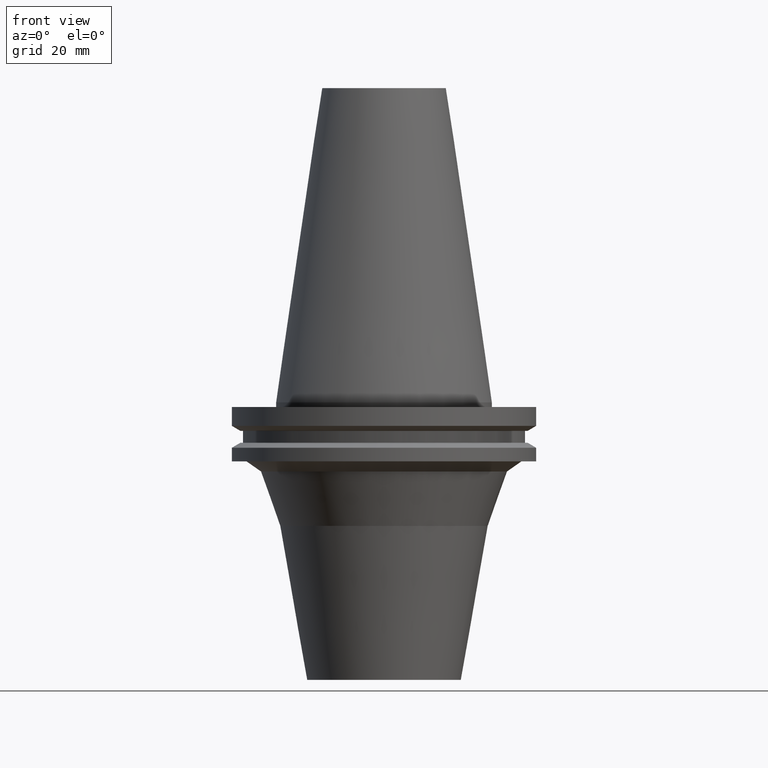
[diagram: clean part render]
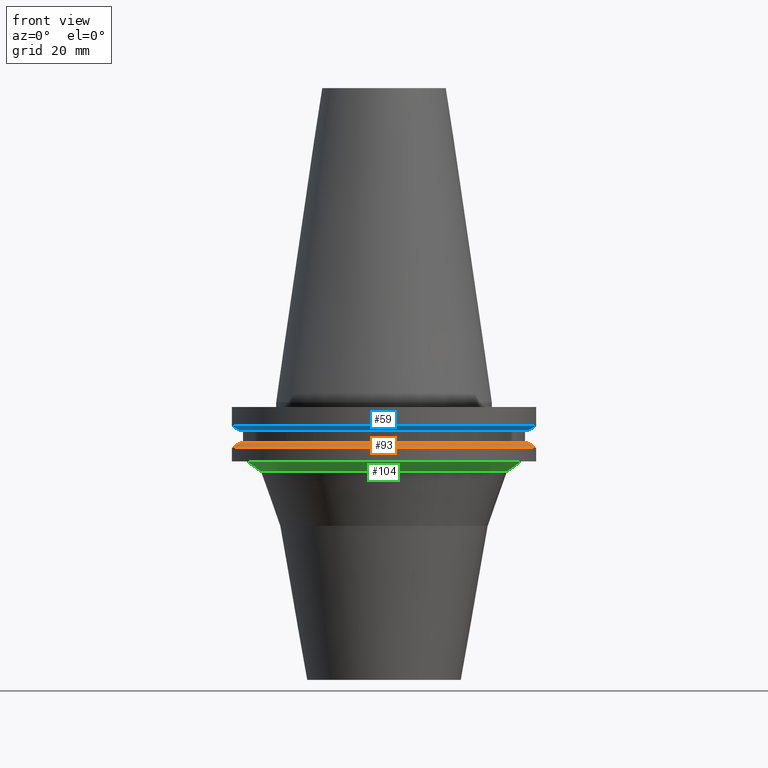
[diagram: same view with three faces highlighted in distinct colors, each labeled with its STEP entity id]
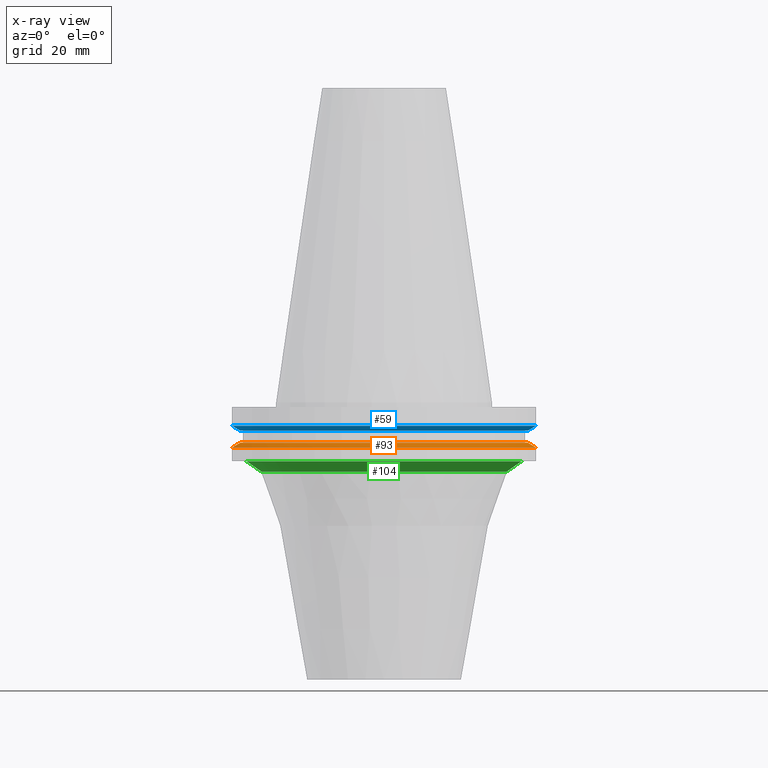
[diagram: x-ray of the same camera — body ghosted, the three highlighted faces saturated]
A machine part, front view with three faces highlighted in distinct colors.
The next image is the same camera in x-ray (body ghosted, the three faces saturated) — at least one of them is partly hidden behind the body in this view.
Their STEP definitions:

[orange] entity #93 — the highlighted conical surface has half-angle 60 deg.
#79=EDGE_CURVE('Unnamed[1]',#190,#190,#191,.T.);
#93=ADVANCED_FACE('Unnamed[1]',(#211,#212),#213,.T.);
#117=EDGE_CURVE('Unnamed[1]',#249,#249,#250,.T.);
#190=VERTEX_POINT('',#332);
#191=CIRCLE('',#333,46.43053755);
#211=FACE_BOUND('',#359,.T.);
#212=FACE_BOUND('',#360,.T.);
#213=CONICAL_SURFACE('',#361,47.821518775,1.04719755103023);
#249=VERTEX_POINT('',#406);
#250=CIRCLE('',#407,49.2125);
#332=CARTESIAN_POINT('',(7.98469713044073E-016,46.43053755,-13.04));
#333=AXIS2_PLACEMENT_3D('',#484,#485,#486);
#359=EDGE_LOOP('',(#506));
#360=EDGE_LOOP('',(#507));
#361=AXIS2_PLACEMENT_3D('',#508,#509,#510);
#406=CARTESIAN_POINT('',(8.96819062732941E-016,49.2125,-14.64616677));
#407=AXIS2_PLACEMENT_3D('',#551,#552,#553);
#484=CARTESIAN_POINT('',(7.98469713044073E-016,-9.79986347096308E-015,-13.04));
#485=DIRECTION('',(6.12323399573677E-017,-1.22232681699328E-016,-1.0));
#486=DIRECTION('',(2.6574403889463E-033,1.0,-1.22232681699328E-016));
#506=ORIENTED_EDGE('',*,*,#117,.F.);
#507=ORIENTED_EDGE('',*,*,#79,.T.);
#508=CARTESIAN_POINT('',(8.47644387888507E-016,-9.89802650673981E-015,-13.843083385));
#509=DIRECTION('',(6.12323399573677E-017,-1.22232681699361E-016,-1.0));
#510=DIRECTION('',(2.65744038894824E-033,1.0,-1.22232681699361E-016));
#551=CARTESIAN_POINT('',(8.96819062732941E-016,-9.99618954251654E-015,-14.64616677));
#552=DIRECTION('',(6.12323399573676E-017,-1.22232681699326E-016,-1.0));
#553=DIRECTION('',(2.65744038894278E-033,1.0,-1.22232681699326E-016));

[blue] entity #59 — the highlighted conical surface has half-angle 60 deg.
#59=ADVANCED_FACE('Unnamed[1]',(#157,#158),#159,.T.);
#77=EDGE_CURVE('Unnamed[1]',#187,#187,#188,.T.);
#133=EDGE_CURVE('Unnamed[1]',#273,#273,#274,.T.);
#157=FACE_BOUND('',#291,.T.);
#158=FACE_BOUND('',#292,.T.);
#159=CONICAL_SURFACE('',#293,47.821518775,1.04719755103024);
#187=VERTEX_POINT('',#328);
#188=CIRCLE('',#329,49.2125);
#273=VERTEX_POINT('',#435);
#274=CIRCLE('',#436,46.43053755);
#291=EDGE_LOOP('',(#446));
#292=EDGE_LOOP('',(#447));
#293=AXIS2_PLACEMENT_3D('',#448,#449,#450);
#328=CARTESIAN_POINT('',(4.64988177918915E-016,49.2125,-7.59383323));
#329=AXIS2_PLACEMENT_3D('',#481,#482,#483);
#435=CARTESIAN_POINT('',(5.63337527607782E-016,46.43053755,-9.2));
#436=AXIS2_PLACEMENT_3D('',#576,#577,#578);
#446=ORIENTED_EDGE('',*,*,#133,.F.);
#447=ORIENTED_EDGE('',*,*,#77,.T.);
#448=CARTESIAN_POINT('',(5.14162852763349E-016,-9.2323269374609E-015,-8.396916615));
#449=DIRECTION('',(-6.12323399573677E-017,1.22232681699361E-016,1.0));
#450=DIRECTION('',(2.65744038894449E-033,1.0,-1.22232681699361E-016));
#481=CARTESIAN_POINT('',(4.64988177918915E-016,-9.13416390168417E-015,-7.59383322999999));
#482=DIRECTION('',(6.12323399573677E-017,-1.22232681699326E-016,-1.0));
#483=DIRECTION('',(2.65744038894278E-033,1.0,-1.22232681699326E-016));
#576=CARTESIAN_POINT('',(5.63337527607782E-016,-9.33048997323763E-015,-9.19999999999999));
#577=DIRECTION('',(6.12323399573677E-017,-1.22232681699328E-016,-1.0));
#578=DIRECTION('',(2.6574403889463E-033,1.0,-1.22232681699328E-016));

[green] entity #104 — the highlighted conical surface has half-angle 55 deg.
#81=EDGE_CURVE('Unnamed[1]',#193,#193,#194,.T.);
#104=ADVANCED_FACE('Unnamed[1]',(#228,#229),#230,.T.);
#135=EDGE_CURVE('Unnamed[1]',#276,#276,#277,.T.);
#193=VERTEX_POINT('',#336);
#194=CIRCLE('',#337,44.5010376910482);
#228=FACE_BOUND('',#380,.T.);
#229=FACE_BOUND('',#381,.T.);
#230=CONICAL_SURFACE('',#382,42.1518061390834,0.95993108859688);
#276=VERTEX_POINT('',#439);
#277=CIRCLE('',#440,39.8025745871186);
#336=CARTESIAN_POINT('',(1.16647607618785E-015,44.5010376910482,-19.05));
#337=AXIS2_PLACEMENT_3D('',#487,#488,#489);
#380=EDGE_LOOP('',(#526));
#381=EDGE_LOOP('',(#527));
#382=AXIS2_PLACEMENT_3D('',#528,#529,#530);
#439=CARTESIAN_POINT('',(1.36792430753277E-015,39.8025745871186,-22.3398992833717));
#440=AXIS2_PLACEMENT_3D('',#579,#580,#581);
#487=CARTESIAN_POINT('',(1.16647607618785E-015,-1.05344818879761E-014,-19.05));
#488=DIRECTION('',(6.12323399573676E-017,-1.22232681699371E-016,-1.0));
#489=DIRECTION('',(2.65744038894765E-033,1.0,-1.22232681699371E-016));
#526=ORIENTED_EDGE('',*,*,#135,.F.);
#527=ORIENTED_EDGE('',*,*,#81,.T.);
#528=CARTESIAN_POINT('',(1.26720019186031E-015,-1.07355484939397E-014,-20.6949496416859));
#529=DIRECTION('',(-6.12323399573677E-017,1.22232681699371E-016,1.0));
#530=DIRECTION('',(2.65744038894824E-033,1.0,-1.22232681699371E-016));
#579=CARTESIAN_POINT('',(1.36792430753277E-015,-1.09366150999033E-014,-22.3398992833717));
#580=DIRECTION('',(6.12323399573677E-017,-1.22232681699371E-016,-1.0));
#581=DIRECTION('',(2.65744038894889E-033,1.0,-1.22232681699371E-016));